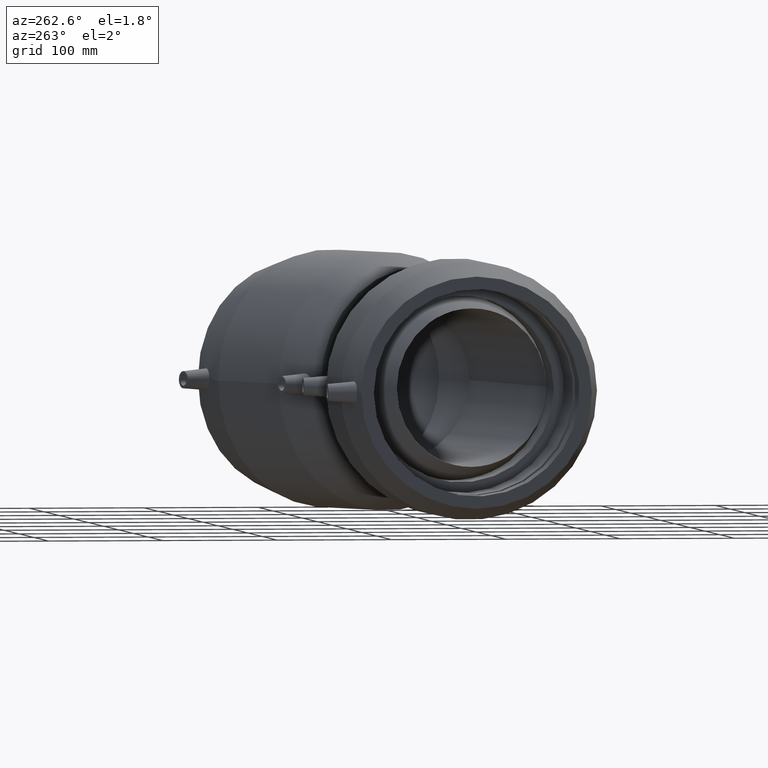
[diagram: clean part render]
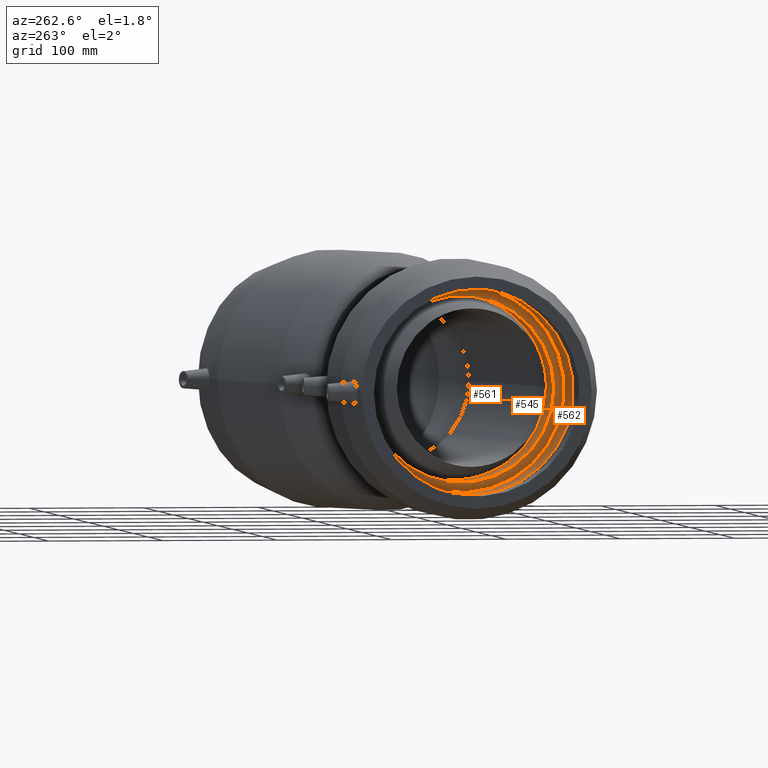
[diagram: same view with one multi-face feature highlighted, each face labeled with its STEP entity id]
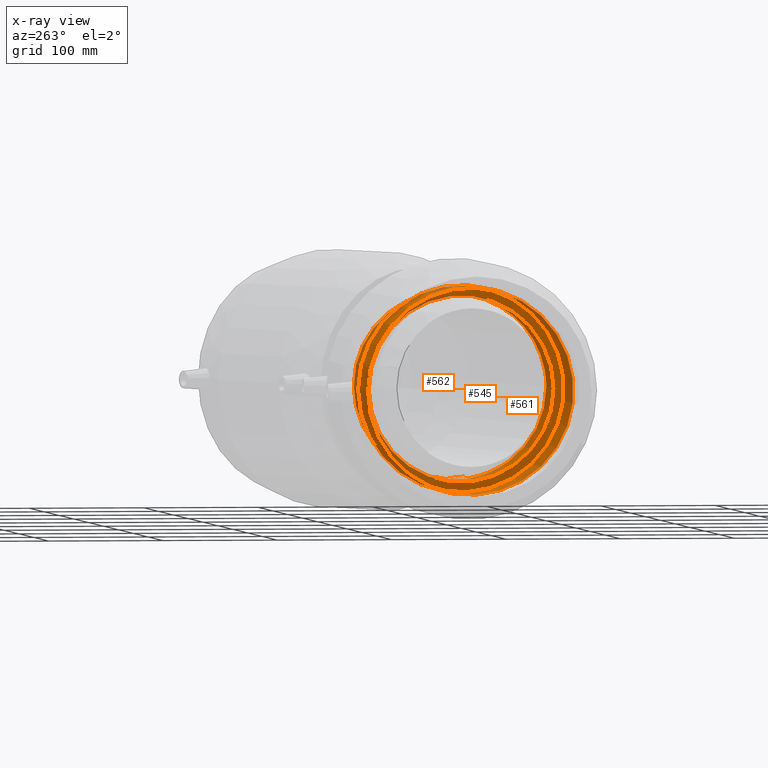
[diagram: x-ray of the same camera — body ghosted, the whole feature saturated]
A machine part, auxiliary view. The highlighted faces form ONE feature: a stepped (counterbored) hole: 2 coaxial cylindrical walls of radii 81 -> 90 mm joined by 1 annular planar shoulder face(s). The faces share edges in the B-rep.
The next image is the same camera in x-ray: the body ghosted and the whole hole feature saturated, so the bore chain is visible through the body.
Their STEP definitions:
[1] entity #562 (Cylinder):
#53=CYLINDRICAL_SURFACE('',#636,90.);
#83=FACE_BOUND('',#205,.T.);
#134=FACE_OUTER_BOUND('',#204,.T.);
#204=EDGE_LOOP('',(#477));
#205=EDGE_LOOP('',(#478));
#292=CIRCLE('',#635,90.);
#293=CIRCLE('',#637,90.);
#343=VERTEX_POINT('',#1225);
#344=VERTEX_POINT('',#1228);
#398=EDGE_CURVE('',#343,#343,#292,.T.);
#399=EDGE_CURVE('',#344,#344,#293,.T.);
#477=ORIENTED_EDGE('',*,*,#399,.F.);
#478=ORIENTED_EDGE('',*,*,#398,.T.);
#562=ADVANCED_FACE('',(#134,#83),#53,.F.);
#635=AXIS2_PLACEMENT_3D('',#1226,#777,#778);
#636=AXIS2_PLACEMENT_3D('',#1227,#779,#780);
#637=AXIS2_PLACEMENT_3D('',#1229,#781,#782);
#777=DIRECTION('center_axis',(1.,1.83697019872103E-16,0.));
#778=DIRECTION('ref_axis',(0.,0.,-1.));
#779=DIRECTION('center_axis',(1.,1.83697019872103E-16,0.));
#780=DIRECTION('ref_axis',(-1.68112701893672E-16,1.,0.));
#781=DIRECTION('center_axis',(1.,1.83697019872103E-16,0.));
#782=DIRECTION('ref_axis',(0.,0.,-1.));
#1225=CARTESIAN_POINT('',(1.79999999999998,90.,0.));
#1226=CARTESIAN_POINT('Origin',(1.8,1.91044900666987E-14,0.));
#1227=CARTESIAN_POINT('Origin',(-29.4,1.33731430466891E-14,0.));
#1228=CARTESIAN_POINT('',(-60.6,90.,0.));
#1229=CARTESIAN_POINT('Origin',(-60.6,7.64179602667948E-15,0.));
[2] entity #545 (Cylinder):
#47=CYLINDRICAL_SURFACE('',#603,81.);
#67=FACE_BOUND('',#172,.T.);
#117=FACE_OUTER_BOUND('',#171,.T.);
#171=EDGE_LOOP('',(#441,#442,#443));
#172=EDGE_LOOP('',(#444));
#265=B_SPLINE_CURVE_WITH_KNOTS('',3,(#1003,#1004,#1005,#1006,#1007,#1008,
#1009,#1010,#1011,#1012,#1013,#1014,#1015,#1016,#1017,#1018,#1019,#1020,
#1021,#1022,#1023,#1024,#1025,#1026,#1027,#1028,#1029,#1030,#1031,#1032,
#1033,#1034,#1035,#1036,#1037,#1038,#1039,#1040,#1041,#1042,#1043,#1044,
#1045,#1046,#1047,#1048,#1049,#1050,#1051,#1052),.UNSPECIFIED.,.F.,.F.,
(4,2,2,2,2,2,2,2,2,2,2,2,2,2,2,2,2,2,2,2,2,2,2,2,4),(7.87289258377218,8.43611073392782,
9.62037564785383,10.5636150040492,11.5068543602446,11.8510884296854,12.1953224991262,
12.5573321708885,12.7383370067697,12.9193418426509,13.100346678532,13.2813515144132,
13.6433611861755,13.9875952556163,14.3318293250571,15.2750686812525,16.2183080374479,
17.4025729513739,18.5868378652999,19.7711027792259,20.9553676931519,22.8672593641524,
24.7791510351528,26.6910427061533,28.6029343771538),.UNSPECIFIED.);
#266=B_SPLINE_CURVE_WITH_KNOTS('',3,(#1055,#1056,#1057,#1058,#1059,#1060,
#1061,#1062,#1063,#1064,#1065,#1066,#1067,#1068,#1069,#1070,#1071,#1072,
#1073,#1074,#1075,#1076,#1077,#1078,#1079,#1080,#1081,#1082,#1083,#1084,
#1085,#1086,#1087,#1088,#1089,#1090,#1091,#1092,#1093,#1094,#1095,#1096,
#1097,#1098,#1099,#1100,#1101,#1102,#1103,#1104),.UNSPECIFIED.,.F.,.F.,
(4,2,2,2,2,2,2,2,2,2,2,2,2,2,2,2,2,2,2,2,2,2,2,2,4),(28.6029343771538,30.5148260481542,
32.4267177191547,34.3386093901551,36.2505010611556,37.4347659750816,38.6190308890076,
39.8032958029336,40.9875607168596,41.930800073055,42.8740394292504,43.2182734986912,
43.562507568132,43.9245172398943,44.1055220757755,44.2865269116567,44.4675317475378,
44.648536583419,45.0105462551813,45.3547803246221,45.6990143940629,46.6422537502583,
47.5854931064537,48.7697580203797,49.3329761705353),.UNSPECIFIED.);
#277=CIRCLE('',#604,81.);
#278=CIRCLE('',#605,81.);
#323=VERTEX_POINT('',#1000);
#324=VERTEX_POINT('',#1002);
#325=VERTEX_POINT('',#1053);
#327=VERTEX_POINT('',#1111);
#377=EDGE_CURVE('',#324,#323,#265,.T.);
#379=EDGE_CURVE('',#323,#325,#266,.T.);
#381=EDGE_CURVE('',#325,#324,#277,.T.);
#382=EDGE_CURVE('',#327,#327,#278,.T.);
#441=ORIENTED_EDGE('',*,*,#377,.T.);
#442=ORIENTED_EDGE('',*,*,#379,.T.);
#443=ORIENTED_EDGE('',*,*,#381,.T.);
#444=ORIENTED_EDGE('',*,*,#382,.F.);
#545=ADVANCED_FACE('',(#117,#67),#47,.F.);
#603=AXIS2_PLACEMENT_3D('',#1109,#713,#714);
#604=AXIS2_PLACEMENT_3D('',#1110,#715,#716);
#605=AXIS2_PLACEMENT_3D('',#1112,#717,#718);
#713=DIRECTION('center_axis',(1.,1.83697019872103E-16,0.));
#714=DIRECTION('ref_axis',(-1.68112701893672E-16,1.,0.));
#715=DIRECTION('center_axis',(1.,1.83697019872103E-16,0.));
#716=DIRECTION('ref_axis',(0.,0.,-1.));
#717=DIRECTION('center_axis',(1.,1.83697019872103E-16,0.));
#718=DIRECTION('ref_axis',(0.,0.,-1.));
#1000=CARTESIAN_POINT('',(52.,-81.,0.));
#1002=CARTESIAN_POINT('',(102.2,-17.4760409651648,79.0922751738997));
#1003=CARTESIAN_POINT('Ctrl Pts',(102.2,-17.4760409651648,79.0922751738998));
#1004=CARTESIAN_POINT('Ctrl Pts',(101.790783757352,-15.5508299087148,79.5176652289353));
#1005=CARTESIAN_POINT('Ctrl Pts',(101.367931826357,-13.6211983439746,79.8700609173904));
#1006=CARTESIAN_POINT('Ctrl Pts',(100.015199769927,-7.66508914496692,80.7396218241747));
#1007=CARTESIAN_POINT('Ctrl Pts',(99.0401566817941,-3.67195947412812,81.0064420597062));
#1008=CARTESIAN_POINT('Ctrl Pts',(97.1938827552907,3.17516193625318,80.9946533797427));
#1009=CARTESIAN_POINT('Ctrl Pts',(96.2360769918985,6.48862401184379,80.8059750955298));
#1010=CARTESIAN_POINT('Ctrl Pts',(94.0926668973314,12.9857345678923,80.0192385928339));
#1011=CARTESIAN_POINT('Ctrl Pts',(92.9061935288078,16.1691673276624,79.4217668841996));
#1012=CARTESIAN_POINT('Ctrl Pts',(91.1653973979791,19.9828154345938,78.5034208650217));
#1013=CARTESIAN_POINT('Ctrl Pts',(90.625749951853,21.0863681351453,78.2150959654008));
#1014=CARTESIAN_POINT('Ctrl Pts',(89.4448824827851,23.2252191488228,77.6068640799512));
#1015=CARTESIAN_POINT('Ctrl Pts',(88.8021529664736,24.2598176053637,77.2874279181065));
#1016=CARTESIAN_POINT('Ctrl Pts',(87.4546625003255,26.094733368341,76.6879647808268));
#1017=CARTESIAN_POINT('Ctrl Pts',(86.6201865756825,27.0634538322871,76.3491165557951));
#1018=CARTESIAN_POINT('Ctrl Pts',(85.1839311880465,28.1711252186478,75.9443364057777));
#1019=CARTESIAN_POINT('Ctrl Pts',(84.6744912784439,28.4825754359815,75.8274248076952));
#1020=CARTESIAN_POINT('Ctrl Pts',(83.5942655534702,28.9229974365402,75.6605291793384));
#1021=CARTESIAN_POINT('Ctrl Pts',(83.023571591586,29.0522282774889,75.6106343850696));
#1022=CARTESIAN_POINT('Ctrl Pts',(81.8168726857117,29.0522282774889,75.6106343850696));
#1023=CARTESIAN_POINT('Ctrl Pts',(81.2461787238276,28.92299743654,75.6605291793384));
#1024=CARTESIAN_POINT('Ctrl Pts',(80.1659529988539,28.4825754359813,75.8274248076953));
#1025=CARTESIAN_POINT('Ctrl Pts',(79.6565130892512,28.1711252186478,75.9443364057777));
#1026=CARTESIAN_POINT('Ctrl Pts',(78.2202577016152,27.0634538322871,76.3491165557951));
#1027=CARTESIAN_POINT('Ctrl Pts',(77.3857817769722,26.094733368341,76.6879647808268));
#1028=CARTESIAN_POINT('Ctrl Pts',(76.0382913108241,24.2598176053637,77.2874279181065));
#1029=CARTESIAN_POINT('Ctrl Pts',(75.3955617945126,23.2252191488228,77.6068640799512));
#1030=CARTESIAN_POINT('Ctrl Pts',(74.2146943254447,21.0863681351453,78.2150959654008));
#1031=CARTESIAN_POINT('Ctrl Pts',(73.6750468793186,19.9828154345938,78.5034208650217));
#1032=CARTESIAN_POINT('Ctrl Pts',(71.9342507484899,16.1691673276624,79.4217668841996));
#1033=CARTESIAN_POINT('Ctrl Pts',(70.7477773799663,12.9857345678923,80.0192385928339));
#1034=CARTESIAN_POINT('Ctrl Pts',(68.6043672853992,6.48862401184378,80.8059750955298));
#1035=CARTESIAN_POINT('Ctrl Pts',(67.646561522007,3.17516193625317,80.9946533797427));
#1036=CARTESIAN_POINT('Ctrl Pts',(65.8002875955036,-3.67195947412812,81.0064420597062));
#1037=CARTESIAN_POINT('Ctrl Pts',(64.8252445073705,-7.66508914496692,80.7396218241747));
#1038=CARTESIAN_POINT('Ctrl Pts',(62.9917582261005,-15.7379698416432,79.5610233088666));
#1039=CARTESIAN_POINT('Ctrl Pts',(62.1331897641037,-19.8176942130494,78.6492573359359));
#1040=CARTESIAN_POINT('Ctrl Pts',(60.5408985849245,-27.8024912144308,76.1936241273491));
#1041=CARTESIAN_POINT('Ctrl Pts',(59.8062943426065,-31.7115348341272,74.6485318487474));
#1042=CARTESIAN_POINT('Ctrl Pts',(58.4662498334413,-39.1328343778585,71.0397495981687));
#1043=CARTESIAN_POINT('Ctrl Pts',(57.8607360651287,-42.6450560934324,68.9760165718081));
#1044=CARTESIAN_POINT('Ctrl Pts',(56.4492502906889,-51.071482733906,63.1866975016027));
#1045=CARTESIAN_POINT('Ctrl Pts',(55.6700961713662,-55.9936293190988,58.8953623212608));
#1046=CARTESIAN_POINT('Ctrl Pts',(54.3299915441623,-64.7336623486843,49.1274178992186));
#1047=CARTESIAN_POINT('Ctrl Pts',(53.7685012165771,-68.5522775813989,43.6515348478051));
#1048=CARTESIAN_POINT('Ctrl Pts',(52.8754544207252,-74.7331471475275,31.9347539898723));
#1049=CARTESIAN_POINT('Ctrl Pts',(52.5427078711311,-77.1025850430768,25.6804156652636));
#1050=CARTESIAN_POINT('Ctrl Pts',(52.1049189746685,-80.2364733424462,12.8996401454391));
#1051=CARTESIAN_POINT('Ctrl Pts',(51.9999999999999,-80.9999999999999,6.37297223666819));
#1052=CARTESIAN_POINT('Ctrl Pts',(51.9999999999999,-80.9999999999999,1.11022302462516E-14));
#1053=CARTESIAN_POINT('',(102.2,-17.4760409651648,-79.0922751738997));
#1055=CARTESIAN_POINT('Ctrl Pts',(51.9999999999999,-80.9999999999999,6.66133814775094E-15));
#1056=CARTESIAN_POINT('Ctrl Pts',(51.9999999999999,-80.9999999999999,-6.37297223666817));
#1057=CARTESIAN_POINT('Ctrl Pts',(52.1049189746685,-80.2364733424462,-12.899640145439));
#1058=CARTESIAN_POINT('Ctrl Pts',(52.5427078711311,-77.1025850430768,-25.6804156652636));
#1059=CARTESIAN_POINT('Ctrl Pts',(52.8754544207252,-74.7331471475275,-31.9347539898723));
#1060=CARTESIAN_POINT('Ctrl Pts',(53.7685012165771,-68.5522775813989,-43.651534847805));
#1061=CARTESIAN_POINT('Ctrl Pts',(54.3299915441623,-64.7336623486843,-49.1274178992186));
#1062=CARTESIAN_POINT('Ctrl Pts',(55.6700961713662,-55.9936293190989,-58.8953623212608));
#1063=CARTESIAN_POINT('Ctrl Pts',(56.4492502906889,-51.0714827339061,-63.1866975016027));
#1064=CARTESIAN_POINT('Ctrl Pts',(57.8607360651287,-42.6450560934325,-68.9760165718081));
#1065=CARTESIAN_POINT('Ctrl Pts',(58.4662498334413,-39.1328343778586,-71.0397495981686));
#1066=CARTESIAN_POINT('Ctrl Pts',(59.8062943426065,-31.7115348341273,-74.6485318487474));
#1067=CARTESIAN_POINT('Ctrl Pts',(60.5408985849245,-27.8024912144308,-76.193624127349));
#1068=CARTESIAN_POINT('Ctrl Pts',(62.1331897641037,-19.8176942130495,-78.6492573359359));
#1069=CARTESIAN_POINT('Ctrl Pts',(62.9917582261005,-15.7379698416433,-79.5610233088665));
#1070=CARTESIAN_POINT('Ctrl Pts',(64.8252445073705,-7.66508914496696,-80.7396218241747));
#1071=CARTESIAN_POINT('Ctrl Pts',(65.8002875955036,-3.67195947412815,-81.0064420597062));
#1072=CARTESIAN_POINT('Ctrl Pts',(67.646561522007,3.17516193625316,-80.9946533797428));
#1073=CARTESIAN_POINT('Ctrl Pts',(68.6043672853992,6.4886240118438,-80.8059750955298));
#1074=CARTESIAN_POINT('Ctrl Pts',(70.7477773799663,12.9857345678923,-80.0192385928339));
#1075=CARTESIAN_POINT('Ctrl Pts',(71.9342507484899,16.1691673276624,-79.4217668841995));
#1076=CARTESIAN_POINT('Ctrl Pts',(73.6750468793186,19.9828154345938,-78.5034208650217));
#1077=CARTESIAN_POINT('Ctrl Pts',(74.2146943254448,21.0863681351453,-78.2150959654008));
#1078=CARTESIAN_POINT('Ctrl Pts',(75.3955617945127,23.2252191488228,-77.6068640799512));
#1079=CARTESIAN_POINT('Ctrl Pts',(76.0382913108241,24.2598176053637,-77.2874279181065));
#1080=CARTESIAN_POINT('Ctrl Pts',(77.3857817769722,26.0947333683411,-76.6879647808268));
#1081=CARTESIAN_POINT('Ctrl Pts',(78.2202577016152,27.0634538322871,-76.3491165557951));
#1082=CARTESIAN_POINT('Ctrl Pts',(79.6565130892512,28.1711252186479,-75.9443364057776));
#1083=CARTESIAN_POINT('Ctrl Pts',(80.165952998854,28.4825754359814,-75.8274248076953));
#1084=CARTESIAN_POINT('Ctrl Pts',(81.2461787238277,28.92299743654,-75.6605291793384));
#1085=CARTESIAN_POINT('Ctrl Pts',(81.8168726857117,29.0522282774889,-75.6106343850696));
#1086=CARTESIAN_POINT('Ctrl Pts',(83.023571591586,29.0522282774889,-75.6106343850696));
#1087=CARTESIAN_POINT('Ctrl Pts',(83.5942655534701,28.92299743654,-75.6605291793384));
#1088=CARTESIAN_POINT('Ctrl Pts',(84.6744912784438,28.4825754359814,-75.8274248076953));
#1089=CARTESIAN_POINT('Ctrl Pts',(85.1839311880465,28.1711252186479,-75.9443364057776));
#1090=CARTESIAN_POINT('Ctrl Pts',(86.6201865756825,27.0634538322871,-76.3491165557951));
#1091=CARTESIAN_POINT('Ctrl Pts',(87.4546625003255,26.0947333683411,-76.6879647808268));
#1092=CARTESIAN_POINT('Ctrl Pts',(88.8021529664736,24.2598176053637,-77.2874279181065));
#1093=CARTESIAN_POINT('Ctrl Pts',(89.444882482785,23.2252191488228,-77.6068640799512));
#1094=CARTESIAN_POINT('Ctrl Pts',(90.6257499518529,21.0863681351453,-78.2150959654008));
#1095=CARTESIAN_POINT('Ctrl Pts',(91.1653973979791,19.9828154345938,-78.5034208650217));
#1096=CARTESIAN_POINT('Ctrl Pts',(92.9061935288078,16.1691673276624,-79.4217668841995));
#1097=CARTESIAN_POINT('Ctrl Pts',(94.0926668973314,12.9857345678923,-80.0192385928339));
#1098=CARTESIAN_POINT('Ctrl Pts',(96.2360769918985,6.4886240118438,-80.8059750955298));
#1099=CARTESIAN_POINT('Ctrl Pts',(97.1938827552907,3.17516193625317,-80.9946533797428));
#1100=CARTESIAN_POINT('Ctrl Pts',(99.0401566817941,-3.67195947412815,-81.0064420597062));
#1101=CARTESIAN_POINT('Ctrl Pts',(100.015199769927,-7.66508914496695,-80.7396218241747));
#1102=CARTESIAN_POINT('Ctrl Pts',(101.367931826357,-13.6211983439746,-79.8700609173903));
#1103=CARTESIAN_POINT('Ctrl Pts',(101.790783757352,-15.5508299087148,-79.5176652289352));
#1104=CARTESIAN_POINT('Ctrl Pts',(102.2,-17.4760409651648,-79.0922751738997));
#1109=CARTESIAN_POINT('Origin',(52.,2.83260804642783E-14,0.));
#1110=CARTESIAN_POINT('Origin',(102.2,3.75476708618578E-14,0.));
#1111=CARTESIAN_POINT('',(1.79999999999998,81.,0.));
#1112=CARTESIAN_POINT('Origin',(1.8,1.91044900666987E-14,0.));
[3] entity #561 (Plane):
#32=PLANE('',#634);
#82=FACE_BOUND('',#203,.T.);
#133=FACE_OUTER_BOUND('',#202,.T.);
#202=EDGE_LOOP('',(#475));
#203=EDGE_LOOP('',(#476));
#278=CIRCLE('',#605,81.);
#292=CIRCLE('',#635,90.);
#327=VERTEX_POINT('',#1111);
#343=VERTEX_POINT('',#1225);
#382=EDGE_CURVE('',#327,#327,#278,.T.);
#398=EDGE_CURVE('',#343,#343,#292,.T.);
#475=ORIENTED_EDGE('',*,*,#398,.F.);
#476=ORIENTED_EDGE('',*,*,#382,.T.);
#561=ADVANCED_FACE('',(#133,#82),#32,.T.);
#605=AXIS2_PLACEMENT_3D('',#1112,#717,#718);
#634=AXIS2_PLACEMENT_3D('',#1224,#775,#776);
#635=AXIS2_PLACEMENT_3D('',#1226,#777,#778);
#717=DIRECTION('center_axis',(1.,1.83697019872103E-16,0.));
#718=DIRECTION('ref_axis',(0.,0.,-1.));
#775=DIRECTION('center_axis',(-1.,-1.83697019872103E-16,0.));
#776=DIRECTION('ref_axis',(0.,0.,1.));
#777=DIRECTION('center_axis',(1.,1.83697019872103E-16,0.));
#778=DIRECTION('ref_axis',(0.,0.,-1.));
#1111=CARTESIAN_POINT('',(1.79999999999998,81.,0.));
#1112=CARTESIAN_POINT('Origin',(1.8,1.91044900666987E-14,0.));
#1224=CARTESIAN_POINT('Origin',(1.79999999999998,90.,0.));
#1225=CARTESIAN_POINT('',(1.79999999999998,90.,0.));
#1226=CARTESIAN_POINT('Origin',(1.8,1.91044900666987E-14,0.));